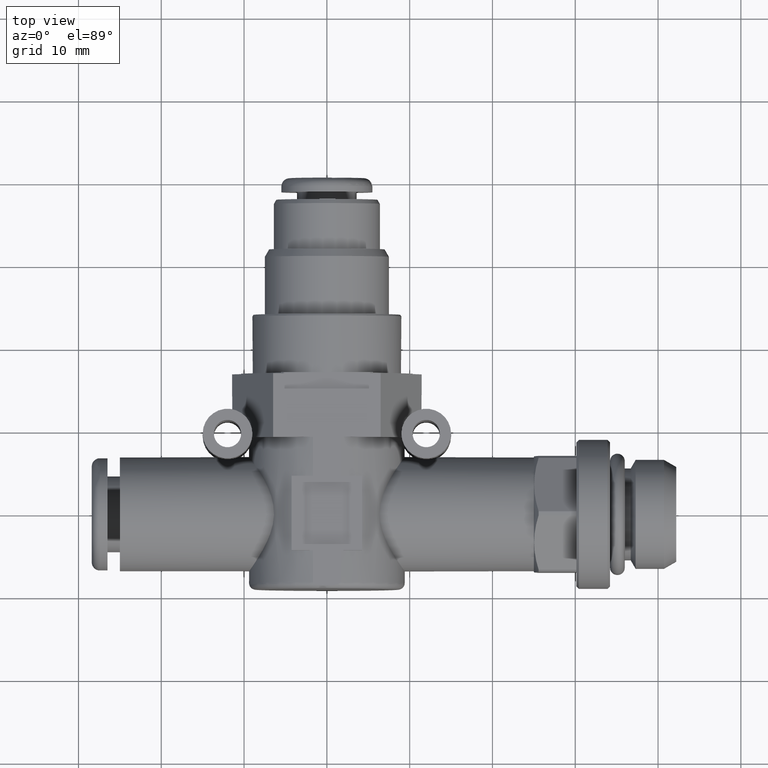
[diagram: clean part render]
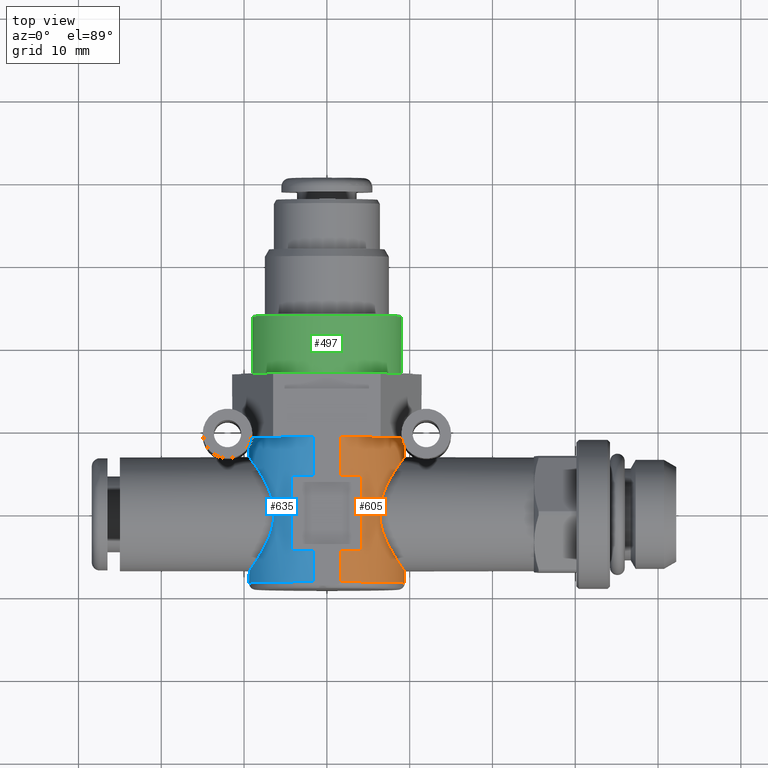
[diagram: same view with three faces highlighted in distinct colors, each labeled with its STEP entity id]
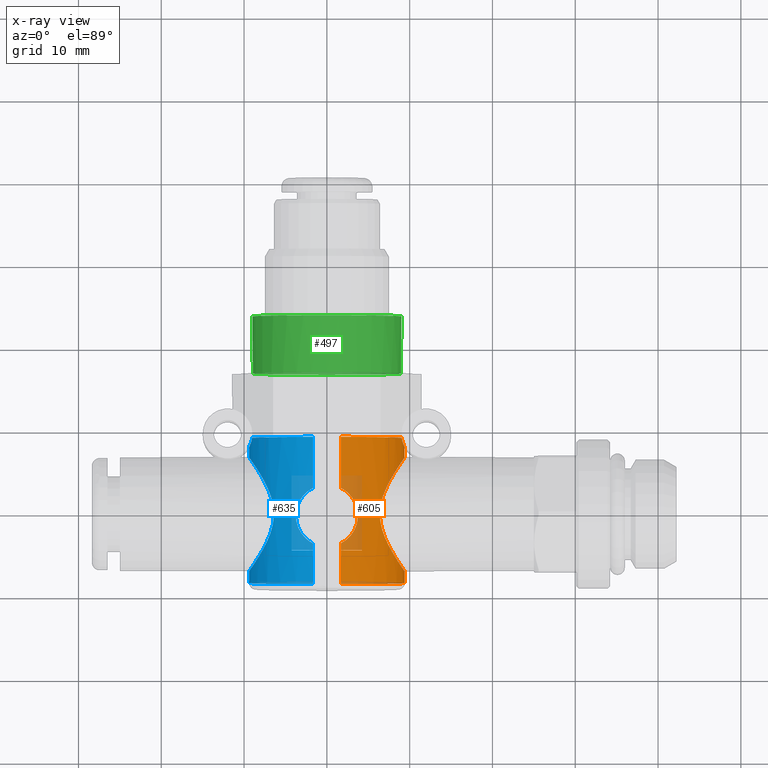
[diagram: x-ray of the same camera — body ghosted, the three highlighted faces saturated]
A machine part, top view with three faces highlighted in distinct colors.
The next image is the same camera in x-ray (body ghosted, the three faces saturated) — at least one of them is partly hidden behind the body in this view.
Their STEP definitions:

[orange] entity #605 — the highlighted cylindrical surface (partial cylindrical patch) has radius 9.4 mm, axis along (0, 1, 0).
#605 = ADVANCED_FACE( '', ( #1254, #1255 ), #1256, .T. );
#1254 = FACE_OUTER_BOUND( '', #1925, .T. );
#1255 = FACE_BOUND( '', #1926, .T. );
#1256 = CYLINDRICAL_SURFACE( '', #1927, 9.40000000000000 );
#1925 = EDGE_LOOP( '', ( #3199, #3200, #3201, #3202, #3203, #3204, #3205, #3206, #3207, #3208, #3209, #3210 ) );
#1926 = EDGE_LOOP( '', ( #3211 ) );
#1927 = AXIS2_PLACEMENT_3D( '', #3212, #3213, #3214 );
#3199 = ORIENTED_EDGE( '', *, *, #4030, .F. );
#3200 = ORIENTED_EDGE( '', *, *, #4009, .T. );
#3201 = ORIENTED_EDGE( '', *, *, #3953, .T. );
#3202 = ORIENTED_EDGE( '', *, *, #4008, .T. );
#3203 = ORIENTED_EDGE( '', *, *, #4031, .T. );
#3204 = ORIENTED_EDGE( '', *, *, #4032, .F. );
#3205 = ORIENTED_EDGE( '', *, *, #3902, .T. );
#3206 = ORIENTED_EDGE( '', *, *, #4033, .T. );
#3207 = ORIENTED_EDGE( '', *, *, #3653, .F. );
#3208 = ORIENTED_EDGE( '', *, *, #4034, .F. );
#3209 = ORIENTED_EDGE( '', *, *, #4035, .F. );
#3210 = ORIENTED_EDGE( '', *, *, #4036, .T. );
#3211 = ORIENTED_EDGE( '', *, *, #4037, .F. );
#3212 = CARTESIAN_POINT( '', ( 0.000000000000000, -9.10000000000000, 0.000000000000000 ) );
#3213 = DIRECTION( '', ( -0.000000000000000, 1.00000000000000, 0.000000000000000 ) );
#3214 = DIRECTION( '', ( 0.000000000000000, 0.000000000000000, -1.00000000000000 ) );
#3653 = EDGE_CURVE( '', #4287, #4289, #4290, .T. );
#3902 = EDGE_CURVE( '', #4671, #4673, #4675, .T. );
#3953 = EDGE_CURVE( '', #4743, #4744, #4745, .T. );
#4008 = EDGE_CURVE( '', #4744, #4816, #4818, .F. );
#4009 = EDGE_CURVE( '', #4819, #4743, #4820, .F. );
#4030 = EDGE_CURVE( '', #4819, #4845, #4846, .T. );
#4031 = EDGE_CURVE( '', #4816, #4847, #4848, .T. );
#4032 = EDGE_CURVE( '', #4671, #4847, #4849, .T. );
#4033 = EDGE_CURVE( '', #4673, #4289, #4850, .T. );
#4034 = EDGE_CURVE( '', #4851, #4287, #4852, .F. );
#4035 = EDGE_CURVE( '', #4853, #4851, #4854, .T. );
#4036 = EDGE_CURVE( '', #4853, #4845, #4855, .T. );
#4037 = EDGE_CURVE( '', #4856, #4856, #4857, .T. );
#4287 = VERTEX_POINT( '', #5171 );
#4289 = VERTEX_POINT( '', #5174 );
#4290 = CIRCLE( '', #5175, 9.40000000000000 );
#4671 = VERTEX_POINT( '', #5753 );
#4673 = VERTEX_POINT( '', #5756 );
#4675 = CIRCLE( '', #5759, 9.40000000000000 );
#4743 = VERTEX_POINT( '', #5997 );
#4744 = VERTEX_POINT( '', #5998 );
#4745 = B_SPLINE_CURVE_WITH_KNOTS( '', 3, ( #5999, #6000, #6001, #6002, #6003, #6004, #6005, #6006, #6007, #6008, #6009, #6010, #6011, #6012, #6013, #6014, #6015, #6016, #6017, #6018, #6019, #6020, #6021, #6022, #6023, #6024 ), .UNSPECIFIED., .F., .F., ( 4, 2, 2, 2, 2, 2, 2, 2, 2, 2, 2, 2, 4 ), ( 2.16840434497101E-019, 0.00104689225394010, 0.00157033838091015, 0.00209378450788020, 0.00314067676182029, 0.00366412288879034, 0.00418756901576039, 0.00471101514273044, 0.00523446126970049, 0.00628135352364058, 0.00732824577758068, 0.00785169190455073, 0.00837513803152077 ), .UNSPECIFIED. );
#4816 = VERTEX_POINT( '', #6275 );
#4818 = LINE( '', #6278, #6279 );
#4819 = VERTEX_POINT( '', #6280 );
#4820 = LINE( '', #6281, #6282 );
#4845 = VERTEX_POINT( '', #6333 );
#4846 = CIRCLE( '', #6334, 9.40000000000000 );
#4847 = VERTEX_POINT( '', #6335 );
#4848 = CIRCLE( '', #6336, 9.40000000000000 );
#4849 = B_SPLINE_CURVE_WITH_KNOTS( '', 3, ( #6337, #6338, #6339, #6340, #6341, #6342, #6343, #6344, #6345, #6346, #6347, #6348, #6349, #6350, #6351, #6352, #6353, #6354, #6355, #6356, #6357, #6358, #6359, #6360 ), .UNSPECIFIED., .F., .F., ( 4, 2, 2, 2, 2, 2, 2, 2, 2, 2, 2, 4 ), ( 0.000411369188282286, 0.000786886969048581, 0.00116240474981488, 0.00153792253058117, 0.00191344031134747, 0.00266447587288006, 0.00341551143441264, 0.00416654699594523, 0.00491758255747782, 0.00566861811901041, 0.00604413589977670, 0.00641965368054299 ), .UNSPECIFIED. );
#4850 = LINE( '', #6361, #6362 );
#4851 = VERTEX_POINT( '', #6363 );
#4852 = LINE( '', #6364, #6365 );
#4853 = VERTEX_POINT( '', #6366 );
#4854 = CIRCLE( '', #6367, 9.40000000000000 );
#4855 = LINE( '', #6368, #6369 );
#4856 = VERTEX_POINT( '', #6370 );
#4857 = B_SPLINE_CURVE_WITH_KNOTS( '', 3, ( #6371, #6372, #6373, #6374, #6375, #6376, #6377, #6378, #6379, #6380, #6381, #6382, #6383, #6384, #6385, #6386, #6387, #6388, #6389, #6390, #6391, #6392, #6393, #6394, #6395, #6396, #6397, #6398, #6399, #6400, #6401, #6402, #6403, #6404, #6405, #6406, #6407, #6408, #6409, #6410, #6411, #6412, #6413, #6414, #6415, #6416, #6417, #6418, #6419, #6420, #6421, #6422, #6423, #6424, #6425, #6426, #6427, #6428, #6429, #6430, #6431, #6432, #6433, #6434, #6435, #6436, #6437, #6438, #6439, #6440, #6441, #6442, #6443, #6444, #6445, #6446, #6447, #6448, #6449, #6450, #6451, #6452, #6453, #6454, #6455, #6456, #6457, #6458 ), .UNSPECIFIED., .T., .F., ( 2, 2, 2, 2, 2, 2, 2, 2, 2, 2, 2, 2, 2, 2, 2, 2, 2, 2, 2, 2, 2, 2, 2, 2, 2, 2, 2, 2, 2, 2, 2, 2, 2, 2, 2, 2, 2, 2, 2, 2, 2, 2, 2, 2, 2, 2 ), ( -0.00140801741601047, 0.000000000000000, 0.00140801741601047, 0.00281603483202094, 0.00352004354002617, 0.00422405224803140, 0.00563206966404188, 0.00704008708005235, 0.00844810449606282, 0.00915211320406805, 0.00985612191207329, 0.0105601306200785, 0.0112641393280838, 0.0119681480360890, 0.0126721567440942, 0.0140801741601047, 0.0147841828681099, 0.0154881915761152, 0.0168962089921257, 0.0183042264081361, 0.0197122438241466, 0.0211202612401571, 0.0218242699481623, 0.0225282786561675, 0.0239362960721780, 0.0253443134881885, 0.0260483221961937, 0.0267523309041990, 0.0281603483202094, 0.0295683657362199, 0.0309763831522304, 0.0316803918602356, 0.0323844005682409, 0.0330884092762461, 0.0337924179842513, 0.0344964266922566, 0.0352004354002618, 0.0366084528162723, 0.0373124615242775, 0.0380164702322827, 0.0394244876482932, 0.0408325050643037, 0.0422405224803142, 0.0436485398963246, 0.0450565573123351, 0.0464645747283456 ), .UNSPECIFIED. );
#5171 = CARTESIAN_POINT( '', ( 4.25000000000000, 4.50000000000000, 8.38436044072534 ) );
#5174 = CARTESIAN_POINT( '', ( 1.67257286836778, 4.50000000000000, 9.25000000000000 ) );
#5175 = AXIS2_PLACEMENT_3D( '', #6785, #6786, #6787 );
#5753 = CARTESIAN_POINT( '', ( 9.02678625053630, 9.20000000000000, 2.62242826157911 ) );
#5756 = CARTESIAN_POINT( '', ( 1.67257286836778, 9.20000000000000, 9.25000000000000 ) );
#5759 = AXIS2_PLACEMENT_3D( '', #7111, #7112, #7113 );
#5997 = CARTESIAN_POINT( '', ( 1.67257286836778, -3.35633728936768, -9.25000000000000 ) );
#5998 = CARTESIAN_POINT( '', ( 1.67257286836778, 3.35633728936768, -9.25000000000000 ) );
#5999 = CARTESIAN_POINT( '', ( 1.67257286836778, -3.35633728936768, -9.25000000000000 ) );
#6000 = CARTESIAN_POINT( '', ( 1.98545889284085, -3.20041592917456, -9.19342435941350 ) );
#6001 = CARTESIAN_POINT( '', ( 2.26774907402576, -3.00630625321360, -9.12617069052928 ) );
#6002 = CARTESIAN_POINT( '', ( 2.64917863106675, -2.65967448542360, -9.01993746733060 ) );
#6003 = CARTESIAN_POINT( '', ( 2.76970322522151, -2.53391651882266, -8.98343455673606 ) );
#6004 = CARTESIAN_POINT( '', ( 2.98969646326723, -2.27017707188057, -8.91263526957597 ) );
#6005 = CARTESIAN_POINT( '', ( 3.09004279715287, -2.13156159574831, -8.87811661630596 ) );
#6006 = CARTESIAN_POINT( '', ( 3.36256460418015, -1.69509190946583, -8.78011593582752 ) );
#6007 = CARTESIAN_POINT( '', ( 3.50703058323926, -1.37227982227982, -8.72189996498162 ) );
#6008 = CARTESIAN_POINT( '', ( 3.65102598461250, -0.873205654635430, -8.66214233821026 ) );
#6009 = CARTESIAN_POINT( '', ( 3.68759009444626, -0.703445536248193, -8.64652561041636 ) );
#6010 = CARTESIAN_POINT( '', ( 3.73709273337321, -0.356783168457846, -8.62524572046579 ) );
#6011 = CARTESIAN_POINT( '', ( 3.74982493105460, -0.178935176355551, -8.61967592326605 ) );
#6012 = CARTESIAN_POINT( '', ( 3.75017140370163, 0.171520417894056, -8.61952518869512 ) );
#6013 = CARTESIAN_POINT( '', ( 3.73812187056629, 0.345574221034191, -8.62479769228459 ) );
#6014 = CARTESIAN_POINT( '', ( 3.68984837047593, 0.691372305162416, -8.64556009492385 ) );
#6015 = CARTESIAN_POINT( '', ( 3.65319396253542, 0.864471573879807, -8.66122960071393 ) );
#6016 = CARTESIAN_POINT( '', ( 3.50858177271809, 1.36927092423530, -8.72128151368270 ) );
#6017 = CARTESIAN_POINT( '', ( 3.36785045597879, 1.68547309267479, -8.77813342464939 ) );
#6018 = CARTESIAN_POINT( '', ( 3.00082255115994, 2.27558789248343, -8.91028097936498 ) );
#6019 = CARTESIAN_POINT( '', ( 2.78179212726406, 2.53831061452959, -8.98284967528623 ) );
#6020 = CARTESIAN_POINT( '', ( 2.39966019934631, 2.88684135024055, -9.08950602946595 ) );
#6021 = CARTESIAN_POINT( '', ( 2.26322392802106, 2.99502234193763, -9.12464811524804 ) );
#6022 = CARTESIAN_POINT( '', ( 1.97828730320287, 3.19041074519550, -9.19063464193050 ) );
#6023 = CARTESIAN_POINT( '', ( 1.82901770511329, 3.27837570005850, -9.22171184980143 ) );
#6024 = CARTESIAN_POINT( '', ( 1.67257286836778, 3.35633728936768, -9.25000000000000 ) );
#6275 = CARTESIAN_POINT( '', ( 1.67257286836778, 9.20000000000000, -9.25000000000000 ) );
#6278 = CARTESIAN_POINT( '', ( 1.67257286836778, -9.10000000000000, -9.25000000000000 ) );
#6279 = VECTOR( '', #7206, 1000.00000000000 );
#6280 = CARTESIAN_POINT( '', ( 1.67257286836778, -8.30000000000000, -9.25000000000000 ) );
#6281 = CARTESIAN_POINT( '', ( 1.67257286836778, -9.10000000000000, -9.25000000000000 ) );
#6282 = VECTOR( '', #7207, 1000.00000000000 );
#6333 = CARTESIAN_POINT( '', ( 1.67257286836870, -8.30000000000078, 9.25000000000000 ) );
#6334 = AXIS2_PLACEMENT_3D( '', #7222, #7223, #7224 );
#6335 = CARTESIAN_POINT( '', ( 9.02678625053630, 9.20000000000000, -2.62242826157911 ) );
#6336 = AXIS2_PLACEMENT_3D( '', #7225, #7226, #7227 );
#6337 = CARTESIAN_POINT( '', ( 9.02678625053630, 9.20000000000000, 2.62242826157911 ) );
#6338 = CARTESIAN_POINT( '', ( 9.04212068651192, 9.08601861029255, 2.56964486313408 ) );
#6339 = CARTESIAN_POINT( '', ( 9.06266099999865, 8.98281102078345, 2.49713789076783 ) );
#6340 = CARTESIAN_POINT( '', ( 9.10719422978917, 8.79965169280477, 2.32949249994492 ) );
#6341 = CARTESIAN_POINT( '', ( 9.13092175128524, 8.72024480121961, 2.23542796235512 ) );
#6342 = CARTESIAN_POINT( '', ( 9.17825790095592, 8.57855458613218, 2.03235137378192 ) );
#6343 = CARTESIAN_POINT( '', ( 9.20168886943548, 8.51705381947301, 1.92398430343214 ) );
#6344 = CARTESIAN_POINT( '', ( 9.24532004790857, 8.41043874688824, 1.70201376653832 ) );
#6345 = CARTESIAN_POINT( '', ( 9.26573599038205, 8.36480234827592, 1.58753178806570 ) );
#6346 = CARTESIAN_POINT( '', ( 9.32149127915953, 8.24602707381262, 1.23542819252035 ) );
#6347 = CARTESIAN_POINT( '', ( 9.35099182384231, 8.19131378956690, 0.989762189760738 ) );
#6348 = CARTESIAN_POINT( '', ( 9.38999584867337, 8.12029750055208, 0.498653430493098 ) );
#6349 = CARTESIAN_POINT( '', ( 9.39999937757450, 8.10333812656680, 0.250544410001699 ) );
#6350 = CARTESIAN_POINT( '', ( 9.40000062236748, 8.10333596411483, -0.250497703133467 ) );
#6351 = CARTESIAN_POINT( '', ( 9.38981580708663, 8.12061352167103, -0.501761491298760 ) );
#6352 = CARTESIAN_POINT( '', ( 9.35076577767721, 8.19173727292411, -0.991758466656487 ) );
#6353 = CARTESIAN_POINT( '', ( 9.32188718125675, 8.24524601923618, -1.23252764827925 ) );
#6354 = CARTESIAN_POINT( '', ( 9.24752355055476, 8.40353854489096, -1.70294251394073 ) );
#6355 = CARTESIAN_POINT( '', ( 9.20188646120618, 8.50772898936413, -1.93106819338534 ) );
#6356 = CARTESIAN_POINT( '', ( 9.13064344687647, 8.72112753757185, -2.23657884929724 ) );
#6357 = CARTESIAN_POINT( '', ( 9.10696907427233, 8.80055988691752, -2.33034453369805 ) );
#6358 = CARTESIAN_POINT( '', ( 9.06282217568560, 8.98216599318444, -2.49652670271925 ) );
#6359 = CARTESIAN_POINT( '', ( 9.04206341653163, 9.08644430002465, -2.56984199488340 ) );
#6360 = CARTESIAN_POINT( '', ( 9.02678625053630, 9.20000000000000, -2.62242826157911 ) );
#6361 = CARTESIAN_POINT( '', ( 1.67257286836778, -9.10000000000000, 9.25000000000000 ) );
#6362 = VECTOR( '', #7228, 1000.00000000000 );
#6363 = CARTESIAN_POINT( '', ( 4.25000000000000, -4.50000000000000, 8.38436044072534 ) );
#6364 = CARTESIAN_POINT( '', ( 4.25000000000000, -9.10000000000000, 8.38436044072534 ) );
#6365 = VECTOR( '', #7229, 1000.00000000000 );
#6366 = CARTESIAN_POINT( '', ( 1.67257286836824, -4.50000000000000, 9.25000000000000 ) );
#6367 = AXIS2_PLACEMENT_3D( '', #7230, #7231, #7232 );
#6368 = CARTESIAN_POINT( '', ( 1.67257286836778, -9.10000000000000, 9.25000000000000 ) );
#6369 = VECTOR( '', #7233, 1000.00000000000 );
#6370 = CARTESIAN_POINT( '', ( 9.40000000000000, -6.90000000000000, -5.75583995599256E-016 ) );
#6371 = CARTESIAN_POINT( '', ( 9.40000000000000, -6.90000000000000, 0.477079065304053 ) );
#6372 = CARTESIAN_POINT( '', ( 9.40000000000000, -6.90000000000000, -0.477079065304053 ) );
#6373 = CARTESIAN_POINT( '', ( 9.36392411072684, -6.85107836074552, -0.943073842527662 ) );
#6374 = CARTESIAN_POINT( '', ( 9.22673369861786, -6.66234303371078, -1.85468279732706 ) );
#6375 = CARTESIAN_POINT( '', ( 9.12400491665865, -6.52024262780445, -2.30267463260368 ) );
#6376 = CARTESIAN_POINT( '', ( 8.93494415818265, -6.25197981933715, -2.92817638400928 ) );
#6377 = CARTESIAN_POINT( '', ( 8.86593388730158, -6.15312390634133, -3.13037575245986 ) );
#6378 = CARTESIAN_POINT( '', ( 8.71740446770089, -5.93711131496438, -3.52291007437030 ) );
#6379 = CARTESIAN_POINT( '', ( 8.63748678677233, -5.81935854344500, -3.71407435473278 ) );
#6380 = CARTESIAN_POINT( '', ( 8.38709377618043, -5.44319441802731, -4.26365608441352 ) );
#6381 = CARTESIAN_POINT( '', ( 8.20686531198224, -5.16359890093293, -4.59730705478497 ) );
#6382 = CARTESIAN_POINT( '', ( 7.83387537511766, -4.54749587724643, -5.20752023636185 ) );
#6383 = CARTESIAN_POINT( '', ( 7.64012926035198, -4.20901641855955, -5.48460057705023 ) );
#6384 = CARTESIAN_POINT( '', ( 7.26978086708697, -3.49198481558569, -5.96680021026368 ) );
#6385 = CARTESIAN_POINT( '', ( 7.09140143553096, -3.11124664908091, -6.17476780252409 ) );
#6386 = CARTESIAN_POINT( '', ( 6.85222938294929, -2.49770251720362, -6.43590595154878 ) );
#6387 = CARTESIAN_POINT( '', ( 6.77694501651860, -2.28463555284390, -6.51476206968361 ) );
#6388 = CARTESIAN_POINT( '', ( 6.64327188142851, -1.85084768227445, -6.65101851530470 ) );
#6389 = CARTESIAN_POINT( '', ( 6.58464127715640, -1.62976392820553, -6.70872964492827 ) );
#6390 = CARTESIAN_POINT( '', ( 6.48764044001397, -1.17818003367596, -6.80257860804758 ) );
#6391 = CARTESIAN_POINT( '', ( 6.44927446936839, -0.947680532793927, -6.83872360915415 ) );
#6392 = CARTESIAN_POINT( '', ( 6.39699449431941, -0.475915718738623, -6.88765150274725 ) );
#6393 = CARTESIAN_POINT( '', ( 6.38372470262382, -0.239200582522910, -6.89985934373102 ) );
#6394 = CARTESIAN_POINT( '', ( 6.38342325573405, 0.231015803866398, -6.90013822907306 ) );
#6395 = CARTESIAN_POINT( '', ( 6.39629871489044, 0.465304450284490, -6.88829247575381 ) );
#6396 = CARTESIAN_POINT( '', ( 6.44711368461325, 0.932279917016811, -6.84075548600505 ) );
#6397 = CARTESIAN_POINT( '', ( 6.48551137299522, 1.16664395889886, -6.80460724087781 ) );
#6398 = CARTESIAN_POINT( '', ( 6.63079100478988, 1.84775290002264, -6.66413989485706 ) );
#6399 = CARTESIAN_POINT( '', ( 6.76704826838905, 2.27737397826084, -6.52860960117789 ) );
#6400 = CARTESIAN_POINT( '', ( 7.00634212732634, 2.89390782466992, -6.26778201540841 ) );
#6401 = CARTESIAN_POINT( '', ( 7.09206366428060, 3.09461723653541, -6.17100296742761 ) );
#6402 = CARTESIAN_POINT( '', ( 7.26831478526354, 3.47961041499382, -5.96240260503507 ) );
#6403 = CARTESIAN_POINT( '', ( 7.35928361104620, 3.66505242439573, -5.85012248351791 ) );
#6404 = CARTESIAN_POINT( '', ( 7.63654949311563, 4.20251165183724, -5.48954143796139 ) );
#6405 = CARTESIAN_POINT( '', ( 7.82710363960502, 4.53593779208348, -5.21781823880061 ) );
#6406 = CARTESIAN_POINT( '', ( 8.20268109665764, 5.15704929606045, -4.60491057294427 ) );
#6407 = CARTESIAN_POINT( '', ( 8.38315245333787, 5.43705972575660, -4.27087214156552 ) );
#6408 = CARTESIAN_POINT( '', ( 8.71339513282997, 5.93360161675560, -3.54885040043676 ) );
#6409 = CARTESIAN_POINT( '', ( 8.86428334505474, 6.15160175024531, -3.15881087779594 ) );
#6410 = CARTESIAN_POINT( '', ( 9.12059928844106, 6.51552118042125, -2.31695360393456 ) );
#6411 = CARTESIAN_POINT( '', ( 9.22190796594332, 6.65567093822363, -1.87882963895178 ) );
#6412 = CARTESIAN_POINT( '', ( 9.32677734206764, 6.79999028417709, -1.19357498617676 ) );
#6413 = CARTESIAN_POINT( '', ( 9.35393144327802, 6.83712811323091, -0.959219551558725 ) );
#6414 = CARTESIAN_POINT( '', ( 9.39037785082055, 6.88690667661241, -0.486764226763239 ) );
#6415 = CARTESIAN_POINT( '', ( 9.39972542035229, 6.89962593477217, -0.249300120112782 ) );
#6416 = CARTESIAN_POINT( '', ( 9.40053130530115, 6.90072380761627, 0.466867529042098 ) );
#6417 = CARTESIAN_POINT( '', ( 9.36489034445907, 6.85239555419059, 0.933674466414788 ) );
#6418 = CARTESIAN_POINT( '', ( 9.22842113601974, 6.66467631105098, 1.84639175400069 ) );
#6419 = CARTESIAN_POINT( '', ( 9.12594892615210, 6.52295858025507, 2.29507084434862 ) );
#6420 = CARTESIAN_POINT( '', ( 8.93711338524297, 6.25507848631301, 2.92157112443627 ) );
#6421 = CARTESIAN_POINT( '', ( 8.86815835418895, 6.15632760961456, 3.12408650359753 ) );
#6422 = CARTESIAN_POINT( '', ( 8.71970608495804, 5.94048914231696, 3.51722545039084 ) );
#6423 = CARTESIAN_POINT( '', ( 8.63981526474076, 5.82281342780031, 3.70867082902387 ) );
#6424 = CARTESIAN_POINT( '', ( 8.38937621273163, 5.44670789222667, 4.25922003057515 ) );
#6425 = CARTESIAN_POINT( '', ( 8.20905951761493, 5.16708526361787, 4.59342595241961 ) );
#6426 = CARTESIAN_POINT( '', ( 7.83581776479568, 4.55084080152669, 5.20463064021058 ) );
#6427 = CARTESIAN_POINT( '', ( 7.64188141385334, 4.21220422682517, 5.48218413188963 ) );
#6428 = CARTESIAN_POINT( '', ( 7.27111085070199, 3.49476263976295, 5.96520254443580 ) );
#6429 = CARTESIAN_POINT( '', ( 7.09250599128354, 3.11378778249588, 6.17351284959538 ) );
#6430 = CARTESIAN_POINT( '', ( 6.85300504525107, 2.49983728065319, 6.43508332384993 ) );
#6431 = CARTESIAN_POINT( '', ( 6.77760948193754, 2.28661945975137, 6.51407316284140 ) );
#6432 = CARTESIAN_POINT( '', ( 6.64372150650404, 1.85247772457544, 6.65057170508792 ) );
#6433 = CARTESIAN_POINT( '', ( 6.58499353539737, 1.63121054954961, 6.70838506524126 ) );
#6434 = CARTESIAN_POINT( '', ( 6.48782783334593, 1.17924466964023, 6.80240105033797 ) );
#6435 = CARTESIAN_POINT( '', ( 6.44939437801225, 0.948546606405433, 6.83861086567778 ) );
#6436 = CARTESIAN_POINT( '', ( 6.39702055402216, 0.476366235127084, 6.88762763560287 ) );
#6437 = CARTESIAN_POINT( '', ( 6.38372502220728, 0.239422516248013, 6.89985904806641 ) );
#6438 = CARTESIAN_POINT( '', ( 6.38342294232099, -0.231228118275510, 6.90013851902910 ) );
#6439 = CARTESIAN_POINT( '', ( 6.39632222257764, -0.465732373946127, 6.88827096986586 ) );
#6440 = CARTESIAN_POINT( '', ( 6.44722997708257, -0.933136135026934, 6.84064620865202 ) );
#6441 = CARTESIAN_POINT( '', ( 6.48569735896868, -1.16771039079440, 6.80443111974400 ) );
#6442 = CARTESIAN_POINT( '', ( 6.63122132375690, -1.84937977257018, 6.66371639081730 ) );
#6443 = CARTESIAN_POINT( '', ( 6.76769595952251, -2.27933724636236, 6.52795205003597 ) );
#6444 = CARTESIAN_POINT( '', ( 7.00734206589306, -2.89633565889104, 6.26666768016241 ) );
#6445 = CARTESIAN_POINT( '', ( 7.09317489095685, -3.09716694698827, 6.16973007278199 ) );
#6446 = CARTESIAN_POINT( '', ( 7.26964173048899, -3.48238480835805, 5.96078923591701 ) );
#6447 = CARTESIAN_POINT( '', ( 7.36071641782349, -3.66793069416507, 5.84832530197086 ) );
#6448 = CARTESIAN_POINT( '', ( 7.63828740303552, -4.20567616747878, 5.48714731292904 ) );
#6449 = CARTESIAN_POINT( '', ( 7.82902861852479, -4.53926017274211, 5.21496696102698 ) );
#6450 = CARTESIAN_POINT( '', ( 8.20491402810414, -5.16060151675585, 4.60097329982504 ) );
#6451 = CARTESIAN_POINT( '', ( 8.38542147468116, -5.44055435624708, 4.26646623925434 ) );
#6452 = CARTESIAN_POINT( '', ( 8.71569532691859, -5.93697594966541, 3.54325873273045 ) );
#6453 = CARTESIAN_POINT( '', ( 8.86659096938920, -6.15492138932021, 3.15239800829120 ) );
#6454 = CARTESIAN_POINT( '', ( 9.12254462523336, -6.51823920469565, 2.30937831066251 ) );
#6455 = CARTESIAN_POINT( '', ( 9.22360332257670, -6.65801637558270, 1.87063901960954 ) );
#6456 = CARTESIAN_POINT( '', ( 9.36274069264229, -6.84946983955248, 0.955633463349800 ) );
#6457 = CARTESIAN_POINT( '', ( 9.40000000000000, -6.90000000000000, 0.477079065304053 ) );
#6458 = CARTESIAN_POINT( '', ( 9.40000000000000, -6.90000000000000, -0.477079065304053 ) );
#6785 = CARTESIAN_POINT( '', ( 0.000000000000000, 4.50000000000000, 0.000000000000000 ) );
#6786 = DIRECTION( '', ( 0.000000000000000, -1.00000000000000, 0.000000000000000 ) );
#6787 = DIRECTION( '', ( 0.000000000000000, 0.000000000000000, -1.00000000000000 ) );
#7111 = CARTESIAN_POINT( '', ( 0.000000000000000, 9.20000000000000, 0.000000000000000 ) );
#7112 = DIRECTION( '', ( 0.000000000000000, -1.00000000000000, -0.000000000000000 ) );
#7113 = DIRECTION( '', ( 0.000000000000000, 0.000000000000000, -1.00000000000000 ) );
#7206 = DIRECTION( '', ( -0.000000000000000, -1.00000000000000, -0.000000000000000 ) );
#7207 = DIRECTION( '', ( -0.000000000000000, -1.00000000000000, -0.000000000000000 ) );
#7222 = CARTESIAN_POINT( '', ( 0.000000000000000, -8.30000000000000, 0.000000000000000 ) );
#7223 = DIRECTION( '', ( 0.000000000000000, -1.00000000000000, -0.000000000000000 ) );
#7224 = DIRECTION( '', ( 0.000000000000000, 0.000000000000000, -1.00000000000000 ) );
#7225 = CARTESIAN_POINT( '', ( 0.000000000000000, 9.20000000000000, 0.000000000000000 ) );
#7226 = DIRECTION( '', ( 0.000000000000000, -1.00000000000000, -0.000000000000000 ) );
#7227 = DIRECTION( '', ( 0.000000000000000, 0.000000000000000, -1.00000000000000 ) );
#7228 = DIRECTION( '', ( -0.000000000000000, -1.00000000000000, -0.000000000000000 ) );
#7229 = DIRECTION( '', ( -0.000000000000000, -1.00000000000000, -0.000000000000000 ) );
#7230 = CARTESIAN_POINT( '', ( 0.000000000000000, -4.50000000000000, 0.000000000000000 ) );
#7231 = DIRECTION( '', ( 0.000000000000000, 1.00000000000000, 0.000000000000000 ) );
#7232 = DIRECTION( '', ( 0.000000000000000, -0.000000000000000, 1.00000000000000 ) );
#7233 = DIRECTION( '', ( -0.000000000000000, -1.00000000000000, -0.000000000000000 ) );

[blue] entity #635 — the highlighted cylindrical surface (partial cylindrical patch) has radius 9.4 mm, axis along (0, 1, 0).
#635 = ADVANCED_FACE( '', ( #1310, #1311 ), #1312, .T. );
#1310 = FACE_BOUND( '', #1981, .T. );
#1311 = FACE_OUTER_BOUND( '', #1982, .T. );
#1312 = CYLINDRICAL_SURFACE( '', #1983, 9.40000000000000 );
#1981 = EDGE_LOOP( '', ( #3321 ) );
#1982 = EDGE_LOOP( '', ( #3322, #3323, #3324, #3325, #3326, #3327, #3328, #3329, #3330, #3331, #3332, #3333 ) );
#1983 = AXIS2_PLACEMENT_3D( '', #3334, #3335, #3336 );
#3321 = ORIENTED_EDGE( '', *, *, #4002, .F. );
#3322 = ORIENTED_EDGE( '', *, *, #3998, .F. );
#3323 = ORIENTED_EDGE( '', *, *, #3747, .T. );
#3324 = ORIENTED_EDGE( '', *, *, #4012, .T. );
#3325 = ORIENTED_EDGE( '', *, *, #3925, .T. );
#3326 = ORIENTED_EDGE( '', *, *, #4011, .T. );
#3327 = ORIENTED_EDGE( '', *, *, #4042, .F. );
#3328 = ORIENTED_EDGE( '', *, *, #4070, .T. );
#3329 = ORIENTED_EDGE( '', *, *, #3986, .F. );
#3330 = ORIENTED_EDGE( '', *, *, #4067, .F. );
#3331 = ORIENTED_EDGE( '', *, *, #3618, .F. );
#3332 = ORIENTED_EDGE( '', *, *, #4071, .T. );
#3333 = ORIENTED_EDGE( '', *, *, #4059, .T. );
#3334 = CARTESIAN_POINT( '', ( 0.000000000000000, -9.10000000000000, 0.000000000000000 ) );
#3335 = DIRECTION( '', ( -0.000000000000000, 1.00000000000000, 0.000000000000000 ) );
#3336 = DIRECTION( '', ( 0.000000000000000, 0.000000000000000, -1.00000000000000 ) );
#3618 = EDGE_CURVE( '', #4226, #4229, #4230, .T. );
#3747 = EDGE_CURVE( '', #4441, #4445, #4447, .T. );
#3925 = EDGE_CURVE( '', #4707, #4708, #4709, .T. );
#3986 = EDGE_CURVE( '', #4785, #4787, #4788, .T. );
#3998 = EDGE_CURVE( '', #4441, #4803, #4804, .T. );
#4002 = EDGE_CURVE( '', #4808, #4808, #4809, .T. );
#4011 = EDGE_CURVE( '', #4708, #4821, #4823, .T. );
#4012 = EDGE_CURVE( '', #4445, #4707, #4824, .T. );
#4042 = EDGE_CURVE( '', #4861, #4821, #4863, .T. );
#4059 = EDGE_CURVE( '', #4885, #4803, #4886, .T. );
#4067 = EDGE_CURVE( '', #4229, #4785, #4896, .T. );
#4070 = EDGE_CURVE( '', #4861, #4787, #4899, .F. );
#4071 = EDGE_CURVE( '', #4226, #4885, #4900, .F. );
#4226 = VERTEX_POINT( '', #5091 );
#4229 = VERTEX_POINT( '', #5095 );
#4230 = CIRCLE( '', #5096, 9.40000000000000 );
#4441 = VERTEX_POINT( '', #5374 );
#4445 = VERTEX_POINT( '', #5380 );
#4447 = CIRCLE( '', #5383, 9.40000000000000 );
#4707 = VERTEX_POINT( '', #5924 );
#4708 = VERTEX_POINT( '', #5925 );
#4709 = B_SPLINE_CURVE_WITH_KNOTS( '', 3, ( #5926, #5927, #5928, #5929, #5930, #5931, #5932, #5933, #5934, #5935, #5936, #5937, #5938, #5939, #5940, #5941, #5942, #5943, #5944, #5945, #5946, #5947, #5948, #5949, #5950, #5951 ), .UNSPECIFIED., .F., .F., ( 4, 2, 2, 2, 2, 2, 2, 2, 2, 2, 2, 2, 4 ), ( 0.000000000000000, 0.00104689225394010, 0.00157033838091015, 0.00209378450788019, 0.00314067676182029, 0.00366412288879034, 0.00418756901576039, 0.00471101514273043, 0.00523446126970048, 0.00628135352364058, 0.00732824577758068, 0.00785169190455073, 0.00837513803152077 ), .UNSPECIFIED. );
#4785 = VERTEX_POINT( '', #6076 );
#4787 = VERTEX_POINT( '', #6079 );
#4788 = CIRCLE( '', #6080, 9.40000000000000 );
#4803 = VERTEX_POINT( '', #6143 );
#4804 = B_SPLINE_CURVE_WITH_KNOTS( '', 3, ( #6144, #6145, #6146, #6147, #6148, #6149, #6150, #6151, #6152, #6153, #6154, #6155, #6156, #6157, #6158, #6159, #6160, #6161, #6162, #6163, #6164, #6165, #6166, #6167 ), .UNSPECIFIED., .F., .F., ( 4, 2, 2, 2, 2, 2, 2, 2, 2, 2, 2, 4 ), ( 0.00378974967659775, 0.00416108387216723, 0.00453241806773671, 0.00490375226330619, 0.00527508645887567, 0.00601775485001463, 0.00676042324115359, 0.00750309163229254, 0.00824576002343150, 0.00898842841457046, 0.00935976261013994, 0.00973109680570942 ), .UNSPECIFIED. );
#4808 = VERTEX_POINT( '', #6172 );
#4809 = B_SPLINE_CURVE_WITH_KNOTS( '', 3, ( #6173, #6174, #6175, #6176, #6177, #6178, #6179, #6180, #6181, #6182, #6183, #6184, #6185, #6186, #6187, #6188, #6189, #6190, #6191, #6192, #6193, #6194, #6195, #6196, #6197, #6198, #6199, #6200, #6201, #6202, #6203, #6204, #6205, #6206, #6207, #6208, #6209, #6210, #6211, #6212, #6213, #6214, #6215, #6216, #6217, #6218, #6219, #6220, #6221, #6222, #6223, #6224, #6225, #6226, #6227, #6228, #6229, #6230, #6231, #6232, #6233, #6234, #6235, #6236, #6237, #6238, #6239, #6240, #6241, #6242, #6243, #6244, #6245, #6246, #6247, #6248, #6249, #6250, #6251, #6252, #6253, #6254, #6255, #6256, #6257, #6258, #6259, #6260, #6261, #6262, #6263, #6264, #6265, #6266 ), .UNSPECIFIED., .T., .F., ( 2, 2, 2, 2, 2, 2, 2, 2, 2, 2, 2, 2, 2, 2, 2, 2, 2, 2, 2, 2, 2, 2, 2, 2, 2, 2, 2, 2, 2, 2, 2, 2, 2, 2, 2, 2, 2, 2, 2, 2, 2, 2, 2, 2, 2, 2, 2, 2, 2 ), ( -0.000702008100535227, 0.000000000000000, 0.00140401620107045, 0.00210602430160568, 0.00280803240214091, 0.00351004050267613, 0.00421204860321136, 0.00561606480428182, 0.00702008100535227, 0.00842409720642272, 0.00912610530695795, 0.00982811340749317, 0.0105301215080284, 0.0112321296085636, 0.0126361458096341, 0.0133381539101693, 0.0140401620107045, 0.0154441782117750, 0.0168481944128454, 0.0182522106139159, 0.0189542187144511, 0.0196562268149863, 0.0210602430160568, 0.0217622511165920, 0.0224642592171273, 0.0231662673176625, 0.0238682754181977, 0.0245702835187329, 0.0252722916192682, 0.0266763078203386, 0.0280803240214091, 0.0287823321219443, 0.0294843402224795, 0.0308883564235500, 0.0315903645240852, 0.0322923726246204, 0.0329943807251557, 0.0336963888256909, 0.0351004050267613, 0.0358024131272966, 0.0365044212278318, 0.0379084374289023, 0.0393124536299727, 0.0407164698310432, 0.0421204860321136, 0.0435245022331841, 0.0442265103337193, 0.0449285184342545, 0.0463325346353250 ), .UNSPECIFIED. );
#4821 = VERTEX_POINT( '', #6283 );
#4823 = LINE( '', #6306, #6307 );
#4824 = LINE( '', #6308, #6309 );
#4861 = VERTEX_POINT( '', #6462 );
#4863 = CIRCLE( '', #6485, 9.40000000000000 );
#4885 = VERTEX_POINT( '', #6559 );
#4886 = CIRCLE( '', #6560, 9.40000000000000 );
#4896 = LINE( '', #6572, #6573 );
#4899 = LINE( '', #6577, #6578 );
#4900 = LINE( '', #6579, #6580 );
#5091 = CARTESIAN_POINT( '', ( -1.67257286836778, 4.50000000000000, 9.25000000000000 ) );
#5095 = CARTESIAN_POINT( '', ( -4.25000000000000, 4.50000000000000, 8.38436044072534 ) );
#5096 = AXIS2_PLACEMENT_3D( '', #6734, #6735, #6736 );
#5374 = CARTESIAN_POINT( '', ( -9.02678625053630, 9.20000000000000, -2.62242826157911 ) );
#5380 = CARTESIAN_POINT( '', ( -1.67257286836777, 9.20000000000000, -9.25000000000000 ) );
#5383 = AXIS2_PLACEMENT_3D( '', #6920, #6921, #6922 );
#5924 = CARTESIAN_POINT( '', ( -1.67257286836778, 3.35633728936768, -9.25000000000000 ) );
#5925 = CARTESIAN_POINT( '', ( -1.67257286836778, -3.35633728936768, -9.25000000000000 ) );
#5926 = CARTESIAN_POINT( '', ( -1.67257286836778, 3.35633728936768, -9.25000000000000 ) );
#5927 = CARTESIAN_POINT( '', ( -1.98545889284085, 3.20041592917455, -9.19342435941350 ) );
#5928 = CARTESIAN_POINT( '', ( -2.26774907402576, 3.00630625321360, -9.12617069052928 ) );
#5929 = CARTESIAN_POINT( '', ( -2.64917863106675, 2.65967448542360, -9.01993746733060 ) );
#5930 = CARTESIAN_POINT( '', ( -2.76970322522151, 2.53391651882266, -8.98343455673606 ) );
#5931 = CARTESIAN_POINT( '', ( -2.98969646326723, 2.27017707188057, -8.91263526957597 ) );
#5932 = CARTESIAN_POINT( '', ( -3.09004279715287, 2.13156159574831, -8.87811661630596 ) );
#5933 = CARTESIAN_POINT( '', ( -3.36256460418015, 1.69509190946583, -8.78011593582752 ) );
#5934 = CARTESIAN_POINT( '', ( -3.50703058323926, 1.37227982227982, -8.72189996498162 ) );
#5935 = CARTESIAN_POINT( '', ( -3.65102598461250, 0.873205654635429, -8.66214233821026 ) );
#5936 = CARTESIAN_POINT( '', ( -3.68759009444626, 0.703445536248192, -8.64652561041637 ) );
#5937 = CARTESIAN_POINT( '', ( -3.73709273337321, 0.356783168457846, -8.62524572046579 ) );
#5938 = CARTESIAN_POINT( '', ( -3.74982493105460, 0.178935176355551, -8.61967592326605 ) );
#5939 = CARTESIAN_POINT( '', ( -3.75017140370163, -0.171520417894056, -8.61952518869512 ) );
#5940 = CARTESIAN_POINT( '', ( -3.73812187056629, -0.345574221034192, -8.62479769228459 ) );
#5941 = CARTESIAN_POINT( '', ( -3.68984837047592, -0.691372305162417, -8.64556009492385 ) );
#5942 = CARTESIAN_POINT( '', ( -3.65319396253542, -0.864471573879808, -8.66122960071393 ) );
#5943 = CARTESIAN_POINT( '', ( -3.50858177271809, -1.36927092423530, -8.72128151368270 ) );
#5944 = CARTESIAN_POINT( '', ( -3.36785045597879, -1.68547309267479, -8.77813342464939 ) );
#5945 = CARTESIAN_POINT( '', ( -3.00082255115994, -2.27558789248343, -8.91028097936498 ) );
#5946 = CARTESIAN_POINT( '', ( -2.78179212726406, -2.53831061452960, -8.98284967528623 ) );
#5947 = CARTESIAN_POINT( '', ( -2.39966019934631, -2.88684135024055, -9.08950602946595 ) );
#5948 = CARTESIAN_POINT( '', ( -2.26322392802106, -2.99502234193763, -9.12464811524804 ) );
#5949 = CARTESIAN_POINT( '', ( -1.97828730320287, -3.19041074519550, -9.19063464193050 ) );
#5950 = CARTESIAN_POINT( '', ( -1.82901770511329, -3.27837570005850, -9.22171184980143 ) );
#5951 = CARTESIAN_POINT( '', ( -1.67257286836778, -3.35633728936768, -9.25000000000000 ) );
#6076 = CARTESIAN_POINT( '', ( -4.25000000000000, -4.50000000000000, 8.38436044072534 ) );
#6079 = CARTESIAN_POINT( '', ( -1.67257286836778, -4.50000000000000, 9.25000000000000 ) );
#6080 = AXIS2_PLACEMENT_3D( '', #7188, #7189, #7190 );
#6143 = CARTESIAN_POINT( '', ( -9.02678625053630, 9.20000000000000, 2.62242826157911 ) );
#6144 = CARTESIAN_POINT( '', ( -9.02678625053630, 9.20000000000000, -2.62242826157911 ) );
#6145 = CARTESIAN_POINT( '', ( -9.04211201097670, 9.08608309584403, -2.56967472561045 ) );
#6146 = CARTESIAN_POINT( '', ( -9.06255925397781, 8.98326386728990, -2.49751236941415 ) );
#6147 = CARTESIAN_POINT( '', ( -9.10717426907267, 8.79969950376975, -2.32957616316276 ) );
#6148 = CARTESIAN_POINT( '', ( -9.13089942607518, 8.72032699848432, -2.23551040424995 ) );
#6149 = CARTESIAN_POINT( '', ( -9.17815624007199, 8.57884355388280, -2.03280080909009 ) );
#6150 = CARTESIAN_POINT( '', ( -9.20165620670806, 8.51713566778892, -1.92414555449945 ) );
#6151 = CARTESIAN_POINT( '', ( -9.24532233400151, 8.41043112688689, -1.70200705103177 ) );
#6152 = CARTESIAN_POINT( '', ( -9.26572952914778, 8.36481831219113, -1.58755851629953 ) );
#6153 = CARTESIAN_POINT( '', ( -9.32142244829950, 8.24616930961909, -1.23589099046947 ) );
#6154 = CARTESIAN_POINT( '', ( -9.35099389138787, 8.19130934777355, -0.989784768680602 ) );
#6155 = CARTESIAN_POINT( '', ( -9.39001702499317, 8.12025962165349, -0.498338153690610 ) );
#6156 = CARTESIAN_POINT( '', ( -9.39998988963695, 8.10335460899383, -0.250397511600329 ) );
#6157 = CARTESIAN_POINT( '', ( -9.40001009501475, 8.10331950825006, 0.249637843111655 ) );
#6158 = CARTESIAN_POINT( '', ( -9.38981566860466, 8.12061302173873, 0.501816583330854 ) );
#6159 = CARTESIAN_POINT( '', ( -9.35074015906556, 8.19178468602177, 0.992026537607757 ) );
#6160 = CARTESIAN_POINT( '', ( -9.32187774498362, 8.24529287055757, 1.23241458334968 ) );
#6161 = CARTESIAN_POINT( '', ( -9.24786598387026, 8.40278298682411, 1.70094830669513 ) );
#6162 = CARTESIAN_POINT( '', ( -9.20214970972467, 8.50706299524273, 1.92983308364341 ) );
#6163 = CARTESIAN_POINT( '', ( -9.13087981477718, 8.72035873872507, 2.23561793713110 ) );
#6164 = CARTESIAN_POINT( '', ( -9.10698485702111, 8.80049597189667, 2.33028487164815 ) );
#6165 = CARTESIAN_POINT( '', ( -9.06281000932869, 8.98221503161788, 2.49657275156478 ) );
#6166 = CARTESIAN_POINT( '', ( -9.04206658758737, 9.08642072945831, 2.56983107964014 ) );
#6167 = CARTESIAN_POINT( '', ( -9.02678625053630, 9.20000000000000, 2.62242826157911 ) );
#6172 = CARTESIAN_POINT( '', ( -6.38357266740185, 0.000000000000000, -6.90000000000000 ) );
#6173 = CARTESIAN_POINT( '', ( -6.38357266740185, 0.238755414381908, -6.90000000000000 ) );
#6174 = CARTESIAN_POINT( '', ( -6.38357266740185, -0.477510828763817, -6.90000000000000 ) );
#6175 = CARTESIAN_POINT( '', ( -6.43742201093186, -0.940291768259289, -6.85108667742101 ) );
#6176 = CARTESIAN_POINT( '', ( -6.58127005133579, -1.61602973495721, -6.71202891929721 ) );
#6177 = CARTESIAN_POINT( '', ( -6.64010727453562, -1.83950846121535, -6.65417302240478 ) );
#6178 = CARTESIAN_POINT( '', ( -6.77336947818317, -2.27404943867220, -6.51847444893797 ) );
#6179 = CARTESIAN_POINT( '', ( -6.84735305951136, -2.48428523734465, -6.44107964484240 ) );
#6180 = CARTESIAN_POINT( '', ( -7.00590112324694, -2.89276334455511, -6.26826135097205 ) );
#6181 = CARTESIAN_POINT( '', ( -7.09047584017320, -3.09099840755048, -6.17283041896097 ) );
#6182 = CARTESIAN_POINT( '', ( -7.26695891845220, -3.47679672081526, -5.96405827426743 ) );
#6183 = CARTESIAN_POINT( '', ( -7.35915557876869, -3.66483795271670, -5.85031107272369 ) );
#6184 = CARTESIAN_POINT( '', ( -7.63832528913835, -4.20588620522379, -5.48718768568498 ) );
#6185 = CARTESIAN_POINT( '', ( -7.82887815625150, -4.53890421518641, -5.21498871171084 ) );
#6186 = CARTESIAN_POINT( '', ( -8.20186117341684, -5.15566145098839, -4.60618212196399 ) );
#6187 = CARTESIAN_POINT( '', ( -8.38469564396348, -5.43943095444135, -4.26783838872101 ) );
#6188 = CARTESIAN_POINT( '', ( -8.71465014945354, -5.93543724535986, -3.54576343355989 ) );
#6189 = CARTESIAN_POINT( '', ( -8.86383836300231, -6.15093556916549, -3.15935251121356 ) );
#6190 = CARTESIAN_POINT( '', ( -9.05422679126002, -6.42130183453630, -2.53540172681074 ) );
#6191 = CARTESIAN_POINT( '', ( -9.11243858811975, -6.50299489058181, -2.31833570690035 ) );
#6192 = CARTESIAN_POINT( '', ( -9.21344777085957, -6.64379600462238, -1.87712483489671 ) );
#6193 = CARTESIAN_POINT( '', ( -9.25636252738743, -6.70308413190946, -1.65310072459933 ) );
#6194 = CARTESIAN_POINT( '', ( -9.32618325400072, -6.79917522411635, -1.19803804484235 ) );
#6195 = CARTESIAN_POINT( '', ( -9.35309286566130, -6.83598108372099, -0.967000613878974 ) );
#6196 = CARTESIAN_POINT( '', ( -9.38977620086767, -6.88608657552951, -0.497533153212601 ) );
#6197 = CARTESIAN_POINT( '', ( -9.39941747069835, -6.89920640751378, -0.258297088996277 ) );
#6198 = CARTESIAN_POINT( '', ( -9.40108677391745, -6.90148053614327, 0.450146829254572 ) );
#6199 = CARTESIAN_POINT( '', ( -9.36679164605016, -6.85499399813491, 0.916692731201142 ) );
#6200 = CARTESIAN_POINT( '', ( -9.26436049027211, -6.71412053341334, 1.60807416877240 ) );
#6201 = CARTESIAN_POINT( '', ( -9.22187134427080, -6.65546395915984, 1.83522805002108 ) );
#6202 = CARTESIAN_POINT( '', ( -9.12313030047944, -6.51795948905167, 2.27584415247200 ) );
#6203 = CARTESIAN_POINT( '', ( -9.06670286239740, -6.43887289443556, 2.49051714276644 ) );
#6204 = CARTESIAN_POINT( '', ( -8.87836155191126, -6.17180988602398, 3.11862179291091 ) );
#6205 = CARTESIAN_POINT( '', ( -8.72632524600671, -5.95256937611434, 3.51737526219702 ) );
#6206 = CARTESIAN_POINT( '', ( -8.39520256453325, -5.45561692001060, 4.24749984516350 ) );
#6207 = CARTESIAN_POINT( '', ( -8.21410069906515, -5.17512578033832, 4.58456995444504 ) );
#6208 = CARTESIAN_POINT( '', ( -7.83919364063735, -4.55669106735894, 5.19968989711634 ) );
#6209 = CARTESIAN_POINT( '', ( -7.64846418824297, -4.22408236248329, 5.47303573147444 ) );
#6210 = CARTESIAN_POINT( '', ( -7.37014986753721, -3.68681107618910, 5.83645201036117 ) );
#6211 = CARTESIAN_POINT( '', ( -7.27870118209872, -3.50125697717797, 5.94974639494748 ) );
#6212 = CARTESIAN_POINT( '', ( -7.10124443924857, -3.11560300871451, 6.16046268363969 ) );
#6213 = CARTESIAN_POINT( '', ( -7.01522204534830, -2.91526529796802, 6.25784959648937 ) );
#6214 = CARTESIAN_POINT( '', ( -6.77542519990469, -2.30176286517233, 6.51994639792294 ) );
#6215 = CARTESIAN_POINT( '', ( -6.63771216829412, -1.87278000153397, 6.65730317358942 ) );
#6216 = CARTESIAN_POINT( '', ( -6.48953389433436, -1.18893679056999, 6.80078502290996 ) );
#6217 = CARTESIAN_POINT( '', ( -6.45070795434634, -0.956681583738530, 6.83737227908056 ) );
#6218 = CARTESIAN_POINT( '', ( -6.39821339664473, -0.490653859050833, 6.88652003017506 ) );
#6219 = CARTESIAN_POINT( '', ( -6.38430182714788, -0.255763464348492, 6.89932540849994 ) );
#6220 = CARTESIAN_POINT( '', ( -6.38289944872185, 0.217969039236198, 6.90062283710701 ) );
#6221 = CARTESIAN_POINT( '', ( -6.39573654983131, 0.457807708206330, 6.88881312512721 ) );
#6222 = CARTESIAN_POINT( '', ( -6.44617335503068, 0.925901077843870, 6.84164025396437 ) );
#6223 = CARTESIAN_POINT( '', ( -6.48362638724053, 1.15606038550309, 6.80639697891775 ) );
#6224 = CARTESIAN_POINT( '', ( -6.57958377540776, 1.60934369953000, 6.71368217197786 ) );
#6225 = CARTESIAN_POINT( '', ( -6.63852703912949, 1.83383337540170, 6.65574780986506 ) );
#6226 = CARTESIAN_POINT( '', ( -6.77165304958259, 2.26896201453551, 6.52025575678253 ) );
#6227 = CARTESIAN_POINT( '', ( -6.84552363885285, 2.47923188063407, 6.44301806790570 ) );
#6228 = CARTESIAN_POINT( '', ( -7.08277667064265, 3.09149036512111, 6.18457577264682 ) );
#6229 = CARTESIAN_POINT( '', ( -7.26180133623288, 3.47572003144079, 5.97665531719555 ) );
#6230 = CARTESIAN_POINT( '', ( -7.63614528863139, 4.20209304503512, 5.49030532469626 ) );
#6231 = CARTESIAN_POINT( '', ( -7.82716016450412, 4.53593490876500, 5.21752551243643 ) );
#6232 = CARTESIAN_POINT( '', ( -8.10660093210324, 4.99820427616913, 4.76180359801348 ) );
#6233 = CARTESIAN_POINT( '', ( -8.19861752475949, 5.14578755272072, 4.60207004970124 ) );
#6234 = CARTESIAN_POINT( '', ( -8.37854890350552, 5.42788006028833, 4.26571170277798 ) );
#6235 = CARTESIAN_POINT( '', ( -8.46623915054735, 5.56200684913802, 4.08935505118333 ) );
#6236 = CARTESIAN_POINT( '', ( -8.71574045200451, 5.93708606717958, 3.54344306133027 ) );
#6237 = CARTESIAN_POINT( '', ( -8.86575038831154, 6.15369602076119, 3.15429749460710 ) );
#6238 = CARTESIAN_POINT( '', ( -9.05662298734539, 6.42468140275721, 2.52692713056191 ) );
#6239 = CARTESIAN_POINT( '', ( -9.11474674440464, 6.50622605094993, 2.30917524359221 ) );
#6240 = CARTESIAN_POINT( '', ( -9.21503198913254, 6.64599005206604, 1.86924689635103 ) );
#6241 = CARTESIAN_POINT( '', ( -9.25758699901983, 6.70477343034637, 1.64607377387092 ) );
#6242 = CARTESIAN_POINT( '', ( -9.32677898490670, 6.79999087801997, 1.19317629885508 ) );
#6243 = CARTESIAN_POINT( '', ( -9.35341920657973, 6.83642718137245, 0.963452832607108 ) );
#6244 = CARTESIAN_POINT( '', ( -9.38975744186491, 6.88606059872049, 0.497139213516564 ) );
#6245 = CARTESIAN_POINT( '', ( -9.39944358117190, 6.89924197855280, 0.258837577212618 ) );
#6246 = CARTESIAN_POINT( '', ( -9.40104203520024, 6.90141958727103, -0.454482959462074 ) );
#6247 = CARTESIAN_POINT( '', ( -9.36622300312256, 6.85421482115788, -0.921266567826684 ) );
#6248 = CARTESIAN_POINT( '', ( -9.26416266426484, 6.71384701475602, -1.60903899528434 ) );
#6249 = CARTESIAN_POINT( '', ( -9.22144790668840, 6.65487937090042, -1.83747913830282 ) );
#6250 = CARTESIAN_POINT( '', ( -9.12210883207452, 6.51653186055897, -2.28003542412262 ) );
#6251 = CARTESIAN_POINT( '', ( -9.06545316967807, 6.43711385447383, -2.49505019349591 ) );
#6252 = CARTESIAN_POINT( '', ( -8.87692499266870, 6.16974648918394, -3.12267020885876 ) );
#6253 = CARTESIAN_POINT( '', ( -8.72479964713258, 5.95035678511369, -3.52126760294399 ) );
#6254 = CARTESIAN_POINT( '', ( -8.39248102905515, 5.45145437572344, -4.25296562307965 ) );
#6255 = CARTESIAN_POINT( '', ( -8.21220621469405, 5.17213068846367, -4.58795508547980 ) );
#6256 = CARTESIAN_POINT( '', ( -7.83715184403438, 4.55319162482093, -5.20276020517843 ) );
#6257 = CARTESIAN_POINT( '', ( -7.64467369039149, 4.21723526371674, -5.47829959543202 ) );
#6258 = CARTESIAN_POINT( '', ( -7.27392419797625, 3.50057290666494, -5.96178069472284 ) );
#6259 = CARTESIAN_POINT( '', ( -7.09383921473525, 3.11717385939469, -6.17205147515503 ) );
#6260 = CARTESIAN_POINT( '', ( -6.77202871713222, 2.29228946925151, -6.52352675098490 ) );
#6261 = CARTESIAN_POINT( '', ( -6.63473707788665, 1.86179143157878, -6.66023832758019 ) );
#6262 = CARTESIAN_POINT( '', ( -6.48808425514944, 1.18083449831976, -6.80216071305986 ) );
#6263 = CARTESIAN_POINT( '', ( -6.44914684373914, 0.946634712586457, -6.83884330756224 ) );
#6264 = CARTESIAN_POINT( '', ( -6.39705019393497, 0.476312345721351, -6.88759911825419 ) );
#6265 = CARTESIAN_POINT( '', ( -6.38357266740185, 0.238755414381908, -6.90000000000000 ) );
#6266 = CARTESIAN_POINT( '', ( -6.38357266740185, -0.477510828763817, -6.90000000000000 ) );
#6283 = CARTESIAN_POINT( '', ( -1.67257286836870, -8.30000000000078, -9.25000000000000 ) );
#6306 = CARTESIAN_POINT( '', ( -1.67257286836778, -9.10000000000000, -9.25000000000000 ) );
#6307 = VECTOR( '', #7208, 1000.00000000000 );
#6308 = CARTESIAN_POINT( '', ( -1.67257286836778, -9.10000000000000, -9.25000000000000 ) );
#6309 = VECTOR( '', #7209, 1000.00000000000 );
#6462 = CARTESIAN_POINT( '', ( -1.67257286836778, -8.30000000000000, 9.25000000000000 ) );
#6485 = AXIS2_PLACEMENT_3D( '', #7234, #7235, #7236 );
#6559 = CARTESIAN_POINT( '', ( -1.67257286836778, 9.20000000000000, 9.25000000000000 ) );
#6560 = AXIS2_PLACEMENT_3D( '', #7248, #7249, #7250 );
#6572 = CARTESIAN_POINT( '', ( -4.25000000000000, -9.10000000000000, 8.38436044072534 ) );
#6573 = VECTOR( '', #7256, 1000.00000000000 );
#6577 = CARTESIAN_POINT( '', ( -1.67257286836778, -9.10000000000000, 9.25000000000000 ) );
#6578 = VECTOR( '', #7258, 1000.00000000000 );
#6579 = CARTESIAN_POINT( '', ( -1.67257286836778, -9.10000000000000, 9.25000000000000 ) );
#6580 = VECTOR( '', #7259, 1000.00000000000 );
#6734 = CARTESIAN_POINT( '', ( 0.000000000000000, 4.50000000000000, 0.000000000000000 ) );
#6735 = DIRECTION( '', ( 0.000000000000000, -1.00000000000000, 0.000000000000000 ) );
#6736 = DIRECTION( '', ( 0.000000000000000, 0.000000000000000, -1.00000000000000 ) );
#6920 = CARTESIAN_POINT( '', ( 0.000000000000000, 9.20000000000000, 0.000000000000000 ) );
#6921 = DIRECTION( '', ( 0.000000000000000, -1.00000000000000, -0.000000000000000 ) );
#6922 = DIRECTION( '', ( 0.000000000000000, 0.000000000000000, -1.00000000000000 ) );
#7188 = CARTESIAN_POINT( '', ( 0.000000000000000, -4.50000000000000, 0.000000000000000 ) );
#7189 = DIRECTION( '', ( 0.000000000000000, 1.00000000000000, 0.000000000000000 ) );
#7190 = DIRECTION( '', ( 0.000000000000000, -0.000000000000000, 1.00000000000000 ) );
#7208 = DIRECTION( '', ( -0.000000000000000, -1.00000000000000, -0.000000000000000 ) );
#7209 = DIRECTION( '', ( -0.000000000000000, -1.00000000000000, -0.000000000000000 ) );
#7234 = CARTESIAN_POINT( '', ( 0.000000000000000, -8.30000000000000, 0.000000000000000 ) );
#7235 = DIRECTION( '', ( 0.000000000000000, -1.00000000000000, -0.000000000000000 ) );
#7236 = DIRECTION( '', ( 0.000000000000000, 0.000000000000000, -1.00000000000000 ) );
#7248 = CARTESIAN_POINT( '', ( 0.000000000000000, 9.20000000000000, 0.000000000000000 ) );
#7249 = DIRECTION( '', ( 0.000000000000000, -1.00000000000000, -0.000000000000000 ) );
#7250 = DIRECTION( '', ( 0.000000000000000, 0.000000000000000, -1.00000000000000 ) );
#7256 = DIRECTION( '', ( -0.000000000000000, -1.00000000000000, -0.000000000000000 ) );
#7258 = DIRECTION( '', ( -0.000000000000000, -1.00000000000000, -0.000000000000000 ) );
#7259 = DIRECTION( '', ( -0.000000000000000, -1.00000000000000, -0.000000000000000 ) );

[green] entity #497 — the highlighted cylindrical surface (bore or boss wall) has radius 9 mm, axis along (0, -1, 0).
#497 = ADVANCED_FACE( '', ( #1057, #1058 ), #1059, .T. );
#1057 = FACE_OUTER_BOUND( '', #1728, .T. );
#1058 = FACE_OUTER_BOUND( '', #1729, .T. );
#1059 = CYLINDRICAL_SURFACE( '', #1730, 9.00000000000000 );
#1728 = EDGE_LOOP( '', ( #2786 ) );
#1729 = EDGE_LOOP( '', ( #2787, #2788, #2789, #2790, #2791, #2792 ) );
#1730 = AXIS2_PLACEMENT_3D( '', #2793, #2794, #2795 );
#2786 = ORIENTED_EDGE( '', *, *, #3660, .F. );
#2787 = ORIENTED_EDGE( '', *, *, #3904, .T. );
#2788 = ORIENTED_EDGE( '', *, *, #3905, .T. );
#2789 = ORIENTED_EDGE( '', *, *, #3800, .T. );
#2790 = ORIENTED_EDGE( '', *, *, #3891, .T. );
#2791 = ORIENTED_EDGE( '', *, *, #3906, .T. );
#2792 = ORIENTED_EDGE( '', *, *, #3907, .T. );
#2793 = CARTESIAN_POINT( '', ( 23.0000000000000, 0.000000000000000, 0.000000000000000 ) );
#2794 = DIRECTION( '', ( -1.00000000000000, -0.000000000000000, 0.000000000000000 ) );
#2795 = DIRECTION( '', ( -0.000000000000000, 0.000000000000000, -1.00000000000000 ) );
#3660 = EDGE_CURVE( '', #4300, #4300, #4301, .T. );
#3800 = EDGE_CURVE( '', #4529, #4527, #4530, .T. );
#3891 = EDGE_CURVE( '', #4527, #4573, #4660, .T. );
#3904 = EDGE_CURVE( '', #4677, #4110, #4678, .T. );
#3905 = EDGE_CURVE( '', #4110, #4529, #4679, .T. );
#3906 = EDGE_CURVE( '', #4573, #4425, #4680, .T. );
#3907 = EDGE_CURVE( '', #4425, #4677, #4681, .T. );
#4110 = VERTEX_POINT( '', #4942 );
#4300 = VERTEX_POINT( '', #5186 );
#4301 = CIRCLE( '', #5187, 9.00000000000000 );
#4425 = VERTEX_POINT( '', #5355 );
#4527 = VERTEX_POINT( '', #5520 );
#4529 = VERTEX_POINT( '', #5523 );
#4530 = CIRCLE( '', #5524, 9.00000000000000 );
#4573 = VERTEX_POINT( '', #5592 );
#4660 = CIRCLE( '', #5739, 9.00000000000000 );
#4677 = VERTEX_POINT( '', #5761 );
#4678 = CIRCLE( '', #5762, 9.00000000000000 );
#4679 = CIRCLE( '', #5763, 9.00000000000000 );
#4680 = CIRCLE( '', #5764, 9.00000000000000 );
#4681 = CIRCLE( '', #5765, 9.00000000000000 );
#4942 = CARTESIAN_POINT( '', ( 2.00000000000000, 7.79422863405995, -4.50000000000000 ) );
#5186 = CARTESIAN_POINT( '', ( 8.90000000000000, 0.000000000000000, -9.00000000000000 ) );
#5187 = AXIS2_PLACEMENT_3D( '', #6798, #6799, #6800 );
#5355 = CARTESIAN_POINT( '', ( 2.00000000000000, -7.79422863405995, -4.50000000000000 ) );
#5520 = CARTESIAN_POINT( '', ( 2.00000000000000, 0.000000000000000, 9.00000000000000 ) );
#5523 = CARTESIAN_POINT( '', ( 2.00000000000000, 7.79422863405995, 4.50000000000000 ) );
#5524 = AXIS2_PLACEMENT_3D( '', #6990, #6991, #6992 );
#5592 = CARTESIAN_POINT( '', ( 2.00000000000000, -7.79422863405995, 4.50000000000000 ) );
#5739 = AXIS2_PLACEMENT_3D( '', #7100, #7101, #7102 );
#5761 = CARTESIAN_POINT( '', ( 2.00000000000000, 0.000000000000000, -9.00000000000000 ) );
#5762 = AXIS2_PLACEMENT_3D( '', #7114, #7115, #7116 );
#5763 = AXIS2_PLACEMENT_3D( '', #7117, #7118, #7119 );
#5764 = AXIS2_PLACEMENT_3D( '', #7120, #7121, #7122 );
#5765 = AXIS2_PLACEMENT_3D( '', #7123, #7124, #7125 );
#6798 = CARTESIAN_POINT( '', ( 8.90000000000000, 0.000000000000000, 0.000000000000000 ) );
#6799 = DIRECTION( '', ( 1.00000000000000, 0.000000000000000, -0.000000000000000 ) );
#6800 = DIRECTION( '', ( -0.000000000000000, 0.000000000000000, -1.00000000000000 ) );
#6990 = CARTESIAN_POINT( '', ( 2.00000000000000, 0.000000000000000, 0.000000000000000 ) );
#6991 = DIRECTION( '', ( 1.00000000000000, 0.000000000000000, -0.000000000000000 ) );
#6992 = DIRECTION( '', ( -0.000000000000000, 0.000000000000000, -1.00000000000000 ) );
#7100 = CARTESIAN_POINT( '', ( 2.00000000000000, 0.000000000000000, 0.000000000000000 ) );
#7101 = DIRECTION( '', ( 1.00000000000000, 0.000000000000000, -0.000000000000000 ) );
#7102 = DIRECTION( '', ( -0.000000000000000, 0.000000000000000, -1.00000000000000 ) );
#7114 = CARTESIAN_POINT( '', ( 2.00000000000000, 0.000000000000000, 0.000000000000000 ) );
#7115 = DIRECTION( '', ( 1.00000000000000, 0.000000000000000, -0.000000000000000 ) );
#7116 = DIRECTION( '', ( -0.000000000000000, 0.000000000000000, -1.00000000000000 ) );
#7117 = CARTESIAN_POINT( '', ( 2.00000000000000, 0.000000000000000, 0.000000000000000 ) );
#7118 = DIRECTION( '', ( 1.00000000000000, 0.000000000000000, -0.000000000000000 ) );
#7119 = DIRECTION( '', ( -0.000000000000000, 0.000000000000000, -1.00000000000000 ) );
#7120 = CARTESIAN_POINT( '', ( 2.00000000000000, 0.000000000000000, 0.000000000000000 ) );
#7121 = DIRECTION( '', ( 1.00000000000000, 0.000000000000000, -0.000000000000000 ) );
#7122 = DIRECTION( '', ( -0.000000000000000, 0.000000000000000, -1.00000000000000 ) );
#7123 = CARTESIAN_POINT( '', ( 2.00000000000000, 0.000000000000000, 0.000000000000000 ) );
#7124 = DIRECTION( '', ( 1.00000000000000, 0.000000000000000, -0.000000000000000 ) );
#7125 = DIRECTION( '', ( -0.000000000000000, 0.000000000000000, -1.00000000000000 ) );